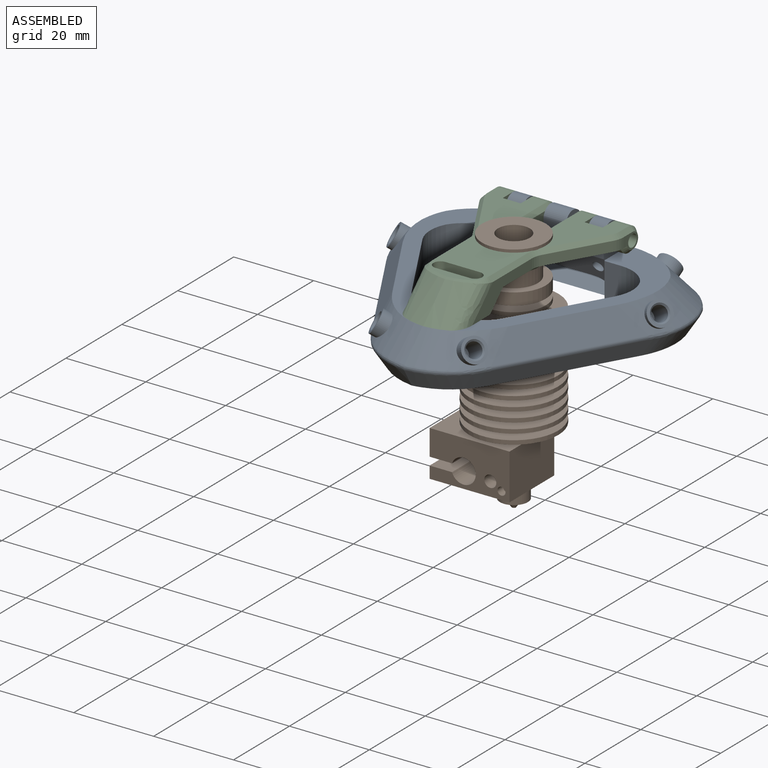
[diagram: assembled view]
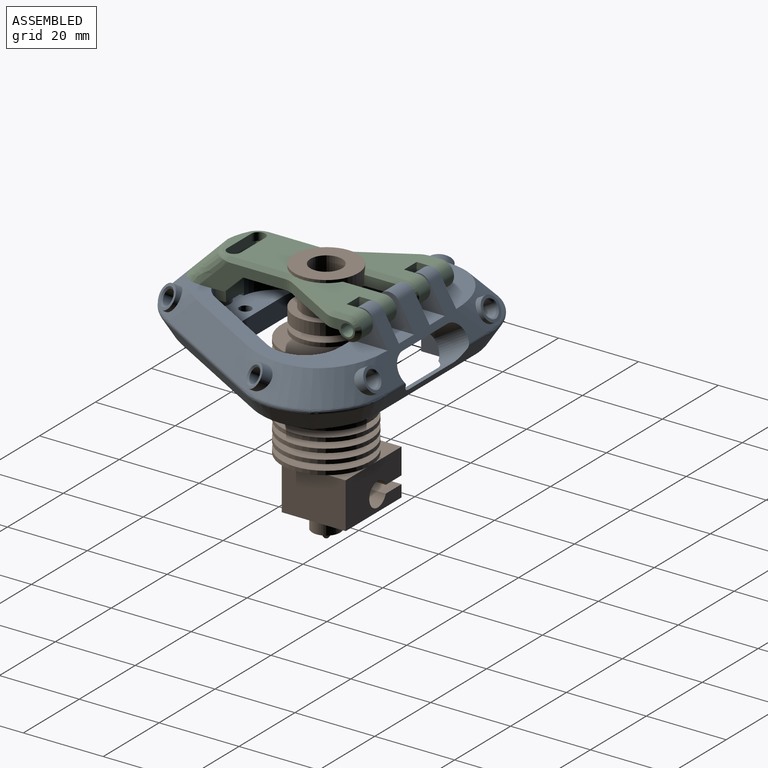
[diagram: assembled view, second angle]
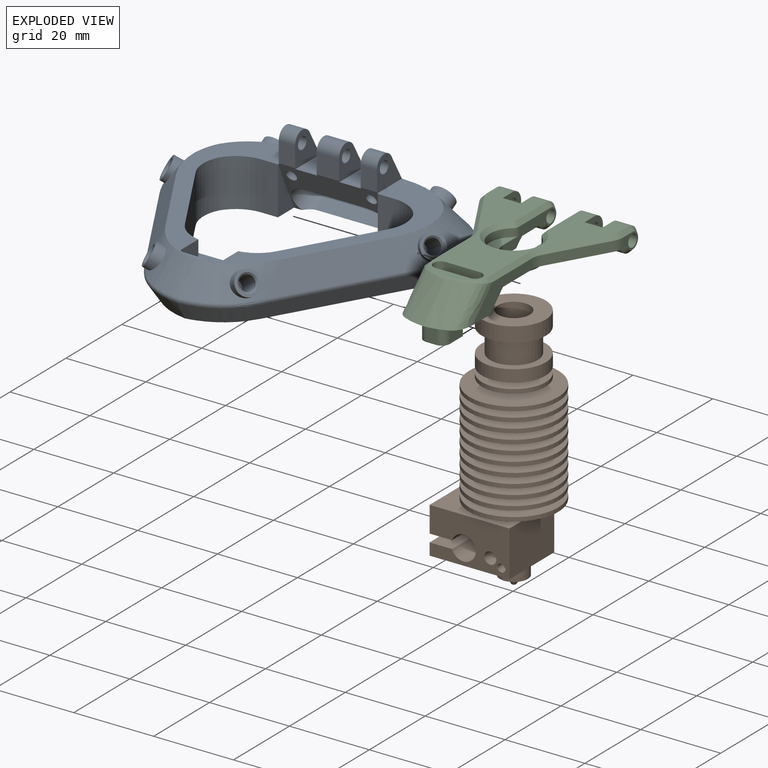
[diagram: exploded view]
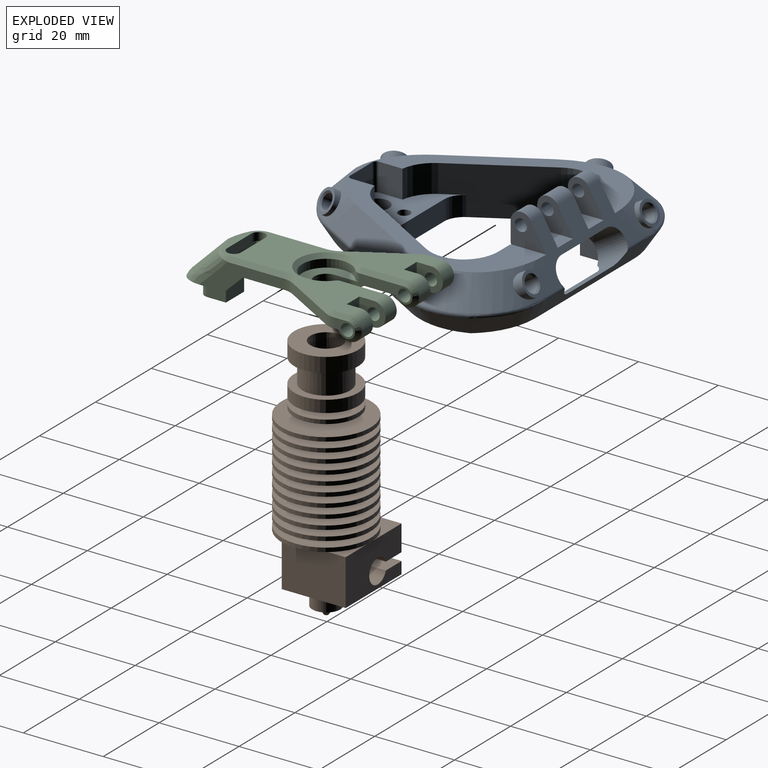
[diagram: exploded view, second angle]
ASSEMBLY  parts=3 mates=2
PART A: 127 faces, bbox 74.6x70.5x22.2 mm
  f0: plane 66.09x61.82mm, normal (0,0,-1), area 1262.6mm2, adj f1,f15,f16,f18,f20,f33,f34,f35
  f1: plane 12x4.22mm, normal (0,-1,0), area 50.7mm2, adj f0,f6,f68,f83
  f2: plane 5.08x4.1mm, normal (0,-1,0), area 20.8mm2, adj f10,f11,f79,f84
  f3: plane 5.6x5.08mm, normal (0,-1,0), area 28.5mm2, adj f8,f9,f80,f84
  f4: plane 5.08x4.1mm, normal (0,-1,0), area 20.8mm2, adj f12,f13,f78,f84
  f5: plane 8.78x5.4mm, normal (0,0,1), area 47.4mm2, adj f9,f13,f17,f84
  f6: plane 59.55x56.2mm, normal (0,0,1), area 677.8mm2, adj f1,f10,f12,f20,f21,f22,f23,f24
  f7: plane 8.78x5.4mm, normal (0,0,1), area 47.4mm2, adj f8,f11,f17,f84
  f8: plane 8.93x8mm, normal (1,0,0), area 43.6mm2, adj f3,f7,f17,f80,f84,f89,f124
  f9: plane 8.93x8mm, normal (-1,0,0), area 43.6mm2, adj f3,f5,f17,f80,f84,f89,f124
  f10: plane 8.93x8mm, normal (1,0,0), area 43.6mm2, adj f2,f6,f17,f79,f84,f88,f126
  f11: plane 8.93x8mm, normal (-1,0,0), area 43.6mm2, adj f2,f7,f17,f79,f84,f88,f126
  f12: plane 8.93x8mm, normal (-1,0,0), area 43.6mm2, adj f4,f6,f17,f78,f84,f87,f125
  f13: plane 8.93x8mm, normal (1,0,0), area 43.6mm2, adj f4,f5,f17,f78,f84,f87,f125
  f14: plane 16x7.04mm, normal (0,0.5,-0.87), area 130.1mm2, adj f15,f16,f17,f84
  f15: cylinder r=4mm len=11.58mm, axis (0,0.87,0.5), area 99mm2, adj f0,f14,f17,f18,f19,f81,f84
  f16: cylinder r=4mm len=11.58mm, axis (0,-0.87,-0.5), area 99mm2, adj f0,f14,f17,f18,f55,f81,f84
  f17: plane 35.16x12.93mm, normal (0,0.87,0.5), area 194.2mm2, adj f5,f7,f8,f9,f10,f11,f12,f13
  f18: plane 39.03x5.7mm, normal (0,0.87,-0.5), area 137.2mm2, adj f0,f15,f16,f19,f37,f40,f53,f55
  f19: cylinder r=1mm len=6.57mm, axis (1,0,0), area 6.6mm2, adj f15,f17,f18,f53
  f20: plane 12x4.22mm, normal (0,-1,0), area 50.7mm2, adj f0,f6,f65,f82
  f21: cylinder r=9mm len=7mm, axis (0,0,1), area 56.5mm2, adj f6,f63,f69,f76
  f22: plane 30.45x18.15mm, normal (0.75,-0.43,0.5), area 221.8mm2, adj f6,f25,f28,f41
  f23: plane 30.45x18.15mm, normal (-0.75,-0.43,0.5), area 221.8mm2, adj f6,f24,f27,f54
  f24: cylinder r=20.5mm len=16.32mm, axis (0.06,0.71,0.71), area 125.8mm2, adj f6,f23,f25,f30,f50,f52,f100
  f25: cylinder r=20.5mm len=16.32mm, axis (-0.06,0.71,0.71), area 125.8mm2, adj f6,f22,f24,f30,f42,f44,f94
  f26: cylinder r=20.5mm len=21.27mm, axis (-0.58,0.41,-0.71), area 125.8mm2, adj f6,f17,f27,f32,f57,f59,f104
  f27: cylinder r=20.5mm len=20.61mm, axis (0.64,-0.3,0.71), area 125.8mm2, adj f6,f23,f26,f32,f56,f58,f98
  f28: cylinder r=20.5mm len=20.61mm, axis (0.64,0.3,-0.71), area 125.8mm2, adj f6,f22,f29,f31,f43,f45,f96
  f29: cylinder r=20.5mm len=21.27mm, axis (0.58,0.41,-0.71), area 125.8mm2, adj f6,f17,f28,f31,f51,f53,f102
  f30: plane 0.34x0.34mm, normal (0,-0.71,0.71), area 0mm2, adj f24,f25,f46,f48
  f31: plane 0.34x0.31mm, normal (0.61,0.35,0.71), area 0mm2, adj f28,f29,f47,f49
  f32: plane 0.34x0.31mm, normal (-0.61,0.35,0.71), area 0mm2, adj f26,f27,f60,f61
  f33: plane 32.83x20.47mm, normal (-0.75,-0.43,-0.5), area 192.2mm2, adj f0,f35,f38,f52,f54,f56
  f34: plane 32.83x20.47mm, normal (0.75,-0.43,-0.5), area 192.2mm2, adj f0,f36,f39,f41,f42,f43
  f35: cylinder r=20.5mm len=16.22mm, axis (0.28,0.48,-0.83), area 88.6mm2, adj f0,f33,f36,f48,f50
  f36: cylinder r=20.5mm len=16.22mm, axis (-0.28,0.48,-0.83), area 88.6mm2, adj f0,f34,f35,f44,f46
  f37: cylinder r=20.5mm len=16.58mm, axis (-0.28,0.48,0.83), area 88.6mm2, adj f0,f18,f38,f59,f61
  f38: cylinder r=20.5mm len=16.8mm, axis (-0.55,0,0.83), area 88.6mm2, adj f0,f33,f37,f58,f60
  f39: cylinder r=20.5mm len=16.8mm, axis (-0.55,0,-0.83), area 88.6mm2, adj f0,f34,f40,f45,f47
  f40: cylinder r=20.5mm len=16.58mm, axis (0.28,0.48,0.83), area 88.6mm2, adj f0,f18,f39,f49,f51
  f41: cylinder r=1mm len=30.52mm, axis (-0.5,-0.87,0), area 36.8mm2, adj f22,f34,f42,f43
  f42: bspline ~1.27x1.04mm, area 1.5mm2, adj f25,f34,f41,f44
  f43: bspline ~1.31x1.04mm, area 1.5mm2, adj f28,f34,f41,f45
  f44: bspline ~16.17x11.19mm, area 22.4mm2, adj f25,f36,f42,f46
  f45: bspline ~20.89x3.98mm, area 22.4mm2, adj f28,f39,f43,f47
  f46: bspline ~1.22x0.3mm, area 0.1mm2, adj f30,f36,f44,f48
  f47: bspline ~1.22x0.31mm, area 0.1mm2, adj f31,f39,f45,f49
  f48: bspline ~1.22x0.3mm, area 0.1mm2, adj f30,f35,f46,f50
  f49: bspline ~1.22x0.28mm, area 0.1mm2, adj f31,f40,f47,f51
  f50: bspline ~16.17x11.19mm, area 22.4mm2, adj f24,f35,f48,f52
  f51: bspline ~18.41x10.26mm, area 22.4mm2, adj f29,f40,f49,f53
  f52: bspline ~1.27x1.04mm, area 1.5mm2, adj f24,f33,f50,f54
  f53: bspline ~5.49x1.29mm, area 1.5mm2, adj f18,f19,f29,f51
  f54: cylinder r=1mm len=30.52mm, axis (-0.5,0.87,0), area 36.8mm2, adj f23,f33,f52,f56
  f55: cylinder r=1mm len=6.57mm, axis (1,0,0), area 6.6mm2, adj f16,f17,f18,f57
  f56: bspline ~1.31x1.04mm, area 1.5mm2, adj f27,f33,f54,f58
  f57: bspline ~5.49x1.29mm, area 1.5mm2, adj f18,f26,f55,f59
  f58: bspline ~20.89x3.98mm, area 22.4mm2, adj f27,f38,f56,f60
  f59: bspline ~18.41x10.26mm, area 22.4mm2, adj f26,f37,f57,f61
  f60: bspline ~1.22x0.31mm, area 0.1mm2, adj f32,f38,f58,f61
  f61: bspline ~1.22x0.28mm, area 0.1mm2, adj f32,f37,f59,f60
  f62: plane 21.96x12.68mm, normal (-0.87,0.5,0), area 275.4mm2, adj f0,f6,f64,f66,f69,f71
  f63: plane 21.96x12.68mm, normal (0.87,0.5,0), area 275.4mm2, adj f0,f6,f21,f67,f69,f72
  f64: cylinder r=9mm len=7mm, axis (0,0,1), area 56.5mm2, adj f6,f62,f69,f75
  f65: cylinder r=9mm len=12mm, axis (0,0,1), area 108.4mm2, adj f0,f6,f20,f66
  f66: cylinder r=9mm len=12mm, axis (0,0,1), area 108.4mm2, adj f0,f6,f62,f65
  f67: cylinder r=9mm len=12mm, axis (0,0,1), area 108.4mm2, adj f0,f6,f63,f68
  f68: cylinder r=9mm len=12mm, axis (0,0,1), area 108.4mm2, adj f0,f1,f6,f67
  f69: plane 28.66x16.28mm, normal (0,0,1), area 178.2mm2, adj f21,f62,f63,f64,f70,f71,f72,f73
  f70: plane 20x5mm, normal (0,1,0), area 100mm2, adj f0,f69,f71,f72
  f71: cylinder r=5mm len=5mm, axis (0,0,-1), area 26.2mm2, adj f0,f62,f69,f70
  f72: cylinder r=5mm len=5mm, axis (0,0,-1), area 26.2mm2, adj f0,f63,f69,f70
  f73: cylinder r=3mm len=6mm, axis (0,0,-1), area 94.2mm2, adj f0,f69
  f74: cylinder r=1.5mm len=5mm, axis (0,0,-1), area 47.1mm2, adj f0,f69
  f75: plane 7x5.88mm, normal (-1,0,0), area 41.1mm2, adj f6,f64,f69,f86
  f76: plane 7x5.88mm, normal (1,0,0), area 41.1mm2, adj f6,f21,f69,f85
  f77: plane 8x7mm, normal (0,1,0), area 56mm2, adj f6,f69,f85,f86
  f78: cylinder r=2.6mm len=4.1mm, axis (1,0,0), area 16.7mm2, adj f4,f12,f13,f125
  f79: cylinder r=2.6mm len=4.1mm, axis (1,0,0), area 16.7mm2, adj f2,f10,f11,f126
  f80: cylinder r=2.6mm len=5.6mm, axis (1,0,0), area 22.9mm2, adj f3,f8,f9,f124
  f81: plane 16x3.83mm, normal (0,-0.5,0.87), area 70.8mm2, adj f0,f15,f16,f18
  f82: plane 12x5.74mm, normal (-1,0,0), area 35.3mm2, adj f0,f6,f20,f84
  f83: plane 12x5.74mm, normal (1,0,0), area 35.3mm2, adj f0,f1,f6,f84
  f84: plane 25.19x12.51mm, normal (0,-0.91,-0.42), area 162mm2, adj f0,f2,f3,f4,f5,f6,f7,f8
  f85: cylinder r=1mm len=7mm, axis (0,0,-1), area 11mm2, adj f6,f69,f76,f77
  f86: cylinder r=1mm len=7mm, axis (0,0,1), area 11mm2, adj f6,f69,f75,f77
  f87: cylinder r=1.53mm len=4.1mm, axis (1,0,0), area 39.4mm2, adj f12,f13
  f88: cylinder r=1.53mm len=4.1mm, axis (1,0,0), area 39.4mm2, adj f10,f11
  f89: cylinder r=1.53mm len=5.6mm, axis (1,0,0), area 53.8mm2, adj f8,f9
  f90: cylinder r=1.35mm len=5.67mm, axis (0,-0.91,-0.42), area 42.4mm2, adj f84,f91
  f91: cone r=0mm half-angle=59deg, axis (0,-0.91,-0.42), area 6.7mm2, adj f90
  f92: cylinder r=1.35mm len=5.67mm, axis (0,-0.91,-0.42), area 42.4mm2, adj f84,f93
  f93: cone r=0mm half-angle=59deg, axis (0,-0.91,-0.42), area 6.7mm2, adj f92
  f94: cylinder r=3mm len=6.56mm, axis (0.75,-0.43,0.5), area 33.1mm2, adj f25,f95
  f95: plane 5.41x5.2mm, normal (0.75,-0.43,0.5), area 12mm2, adj f94,f123
  f96: cylinder r=3mm len=6.56mm, axis (0.75,-0.43,0.5), area 33.1mm2, adj f28,f97
  f97: plane 5.41x5.2mm, normal (0.75,-0.43,0.5), area 12mm2, adj f96,f122
  f98: cylinder r=3mm len=6.24mm, axis (-0.75,-0.43,0.5), area 36.1mm2, adj f27,f99
  f99: plane 5.41x5.2mm, normal (-0.75,-0.43,0.5), area 12mm2, adj f98,f119
  f100: cylinder r=3mm len=6.56mm, axis (-0.75,-0.43,0.5), area 33.1mm2, adj f24,f101
  f101: plane 5.41x5.2mm, normal (-0.75,-0.43,0.5), area 12mm2, adj f100,f118
  f102: cylinder r=3mm len=6.28mm, axis (0,0.87,0.5), area 40.7mm2, adj f29,f103
  f103: plane 6x5.2mm, normal (0,0.87,0.5), area 12mm2, adj f102,f121
  f104: cylinder r=3mm len=6.28mm, axis (0,0.87,0.5), area 40.7mm2, adj f26,f105
  f105: plane 6x5.2mm, normal (0,0.87,0.5), area 12mm2, adj f104,f120
  f106: cylinder r=1.88mm len=8.18mm, axis (0.75,-0.43,0.5), area 89.5mm2, adj f107,f123
  f107: cone r=0mm half-angle=59deg, axis (0.75,-0.43,0.5), area 12.9mm2, adj f106
  f108: cylinder r=1.88mm len=8.18mm, axis (0.75,-0.43,0.5), area 89.5mm2, adj f109,f122
  f109: cone r=0mm half-angle=59deg, axis (0.75,-0.43,0.5), area 12.9mm2, adj f108
  f110: cylinder r=1.88mm len=8.18mm, axis (-0.75,-0.43,0.5), area 89.5mm2, adj f111,f119
  f111: cone r=0mm half-angle=59deg, axis (-0.75,-0.43,0.5), area 12.9mm2, adj f110
  f112: cylinder r=1.88mm len=8.18mm, axis (-0.75,-0.43,0.5), area 89.5mm2, adj f113,f118
  f113: cone r=0mm half-angle=59deg, axis (-0.75,-0.43,0.5), area 12.9mm2, adj f112
  f114: cylinder r=1.88mm len=8.46mm, axis (0,0.87,0.5), area 89.5mm2, adj f115,f121
  f115: cone r=0mm half-angle=59deg, axis (0,0.87,0.5), area 12.9mm2, adj f114
  f116: cylinder r=1.88mm len=8.46mm, axis (0,0.87,0.5), area 89.5mm2, adj f117,f120
  f117: cone r=0mm half-angle=59deg, axis (0,0.87,0.5), area 12.9mm2, adj f116
  f118: cone r=1.88mm half-angle=45deg, axis (-0.75,-0.43,0.5), area 7.4mm2, adj f101,f112
  f119: cone r=1.88mm half-angle=45deg, axis (-0.75,-0.43,0.5), area 7.4mm2, adj f99,f110
  f120: cone r=1.88mm half-angle=45deg, axis (0,0.87,0.5), area 7.4mm2, adj f105,f116
  f121: cone r=1.88mm half-angle=45deg, axis (0,0.87,0.5), area 7.4mm2, adj f103,f114
  f122: cone r=1.88mm half-angle=45deg, axis (0.75,-0.43,0.5), area 7.4mm2, adj f97,f108
  f123: cone r=1.88mm half-angle=45deg, axis (0.75,-0.43,0.5), area 7.4mm2, adj f95,f106
  f124: cylinder r=3mm len=5.6mm, axis (-1,0,0), area 17.5mm2, adj f8,f9,f17,f80
  f125: cylinder r=3mm len=4.1mm, axis (-1,0,0), area 12.8mm2, adj f12,f13,f17,f78
  f126: cylinder r=3mm len=4.1mm, axis (-1,0,0), area 12.8mm2, adj f10,f11,f17,f79
PART B: 92 faces, bbox 26.7x22.3x62 mm
  f0: cylinder r=2.1mm len=18.9mm, axis (0,0,1), area 249.4mm2, adj f57,f59
  f1: cylinder r=8mm len=16mm, axis (0,0,1), area 186mm2, adj f2,f3
  f2: plane 16x16mm, normal (0,0,-1), area 88mm2, adj f1,f4
  f3: plane 16x16mm, normal (0,0,1), area 150.8mm2, adj f1,f56
  f4: cylinder r=6mm len=12mm, axis (0,0,1), area 226.2mm2, adj f2,f7
  f5: cylinder r=8mm len=16mm, axis (0,0,1), area 150.8mm2, adj f6,f7
  f6: plane 16x16mm, normal (0,0,-1), area 150.8mm2, adj f5,f55
  f7: plane 16x16mm, normal (0,0,1), area 88mm2, adj f4,f5
  f8: plane 22.3x22.3mm, normal (0,0,-1), area 359.9mm2, adj f9,f60
  f9: cylinder r=11.15mm len=22.3mm, axis (0,0,1), area 70.1mm2, adj f8,f10
  f10: plane 22.3x22.3mm, normal (0,0,1), area 277.5mm2, adj f9,f11
  f11: cone r=5.89mm half-angle=4.2deg, axis (0,0,-1), area 56.2mm2, adj f10,f12
  f12: plane 22.3x22.3mm, normal (0,0,-1), area 281.5mm2, adj f11,f13
  f13: cylinder r=11.15mm len=22.3mm, axis (0,0,1), area 70.1mm2, adj f12,f14
  f14: plane 22.3x22.3mm, normal (0,0,1), area 284.2mm2, adj f13,f15
  f15: cone r=5.71mm half-angle=4.2deg, axis (0,0,-1), area 54.5mm2, adj f14,f16
  f16: plane 22.3x22.3mm, normal (0,0,-1), area 288.2mm2, adj f15,f17
  f17: cylinder r=11.15mm len=22.3mm, axis (0,0,1), area 70.1mm2, adj f16,f18
  f18: plane 22.3x22.3mm, normal (0,0,1), area 290.8mm2, adj f17,f19
  f19: cone r=5.53mm half-angle=4.2deg, axis (0,0,-1), area 52.7mm2, adj f18,f20
  f20: plane 22.3x22.3mm, normal (0,0,-1), area 294.6mm2, adj f19,f21
  f21: cylinder r=11.15mm len=22.3mm, axis (0,0,1), area 70.1mm2, adj f20,f22
  f22: plane 22.3x22.3mm, normal (0,0,1), area 297.1mm2, adj f21,f23
  f23: cone r=5.35mm half-angle=4.2deg, axis (0,0,-1), area 51mm2, adj f22,f24
  f24: plane 22.3x22.3mm, normal (0,0,-1), area 300.8mm2, adj f23,f25
  f25: cylinder r=11.15mm len=22.3mm, axis (0,0,1), area 70.1mm2, adj f24,f26
  f26: plane 22.3x22.3mm, normal (0,0,1), area 303.2mm2, adj f25,f27
  f27: cone r=5.16mm half-angle=4.2deg, axis (0,0,-1), area 49.3mm2, adj f26,f28
  f28: plane 22.3x22.3mm, normal (0,0,-1), area 306.8mm2, adj f27,f29
  f29: cylinder r=11.15mm len=22.3mm, axis (0,0,1), area 70.1mm2, adj f28,f30
  f30: plane 22.3x22.3mm, normal (0,0,1), area 309.1mm2, adj f29,f31
  f31: cone r=4.98mm half-angle=4.2deg, axis (0,0,-1), area 47.6mm2, adj f30,f32
  f32: plane 22.3x22.3mm, normal (0,0,-1), area 312.6mm2, adj f31,f33
  f33: cylinder r=11.15mm len=22.3mm, axis (0,0,1), area 70.1mm2, adj f32,f34
  f34: plane 22.3x22.3mm, normal (0,0,1), area 314.9mm2, adj f33,f35
  f35: cone r=4.8mm half-angle=4.2deg, axis (0,0,-1), area 45.9mm2, adj f34,f36
  f36: plane 22.3x22.3mm, normal (0,0,-1), area 318.2mm2, adj f35,f37
  f37: cylinder r=11.15mm len=22.3mm, axis (0,0,1), area 70.1mm2, adj f36,f38
  f38: plane 22.3x22.3mm, normal (0,0,1), area 320.4mm2, adj f37,f39
  f39: cone r=4.62mm half-angle=4.2deg, axis (0,0,-1), area 44.2mm2, adj f38,f40
  f40: plane 22.3x22.3mm, normal (0,0,-1), area 323.6mm2, adj f39,f41
  f41: cylinder r=11.15mm len=22.3mm, axis (0,0,1), area 70.1mm2, adj f40,f42
  f42: plane 22.3x22.3mm, normal (0,0,1), area 325.7mm2, adj f41,f43
  f43: cone r=4.44mm half-angle=4.2deg, axis (0,0,-1), area 42.4mm2, adj f42,f44
  f44: plane 22.3x22.3mm, normal (0,0,-1), area 328.7mm2, adj f43,f45
  f45: cylinder r=11.15mm len=22.3mm, axis (0,0,1), area 70.1mm2, adj f44,f46
  f46: plane 22.3x22.3mm, normal (0,0,1), area 330.8mm2, adj f45,f47
  f47: cone r=4.25mm half-angle=4.2deg, axis (0,0,-1), area 40.7mm2, adj f46,f48
  f48: plane 22.3x22.3mm, normal (0,0,-1), area 333.7mm2, adj f47,f49
  f49: cylinder r=11.15mm len=22.3mm, axis (0,0,1), area 70.1mm2, adj f48,f50
  f50: plane 22.3x22.3mm, normal (0,0,1), area 335.6mm2, adj f49,f51
  f51: cone r=4.07mm half-angle=4.2deg, axis (0,0,-1), area 39mm2, adj f50,f52
  f52: plane 16x16mm, normal (0,0,-1), area 149mm2, adj f51,f53
  f53: cylinder r=8mm len=16mm, axis (0,0,1), area 50.3mm2, adj f52,f54
  f54: plane 16x16mm, normal (0,0,1), area 150.8mm2, adj f53,f55
  f55: cylinder r=4mm len=8mm, axis (0,0,1), area 37.7mm2, adj f6,f54
  f56: cylinder r=4mm len=8mm, axis (0,0,1), area 153.3mm2, adj f3,f57
  f57: cone r=4.1mm half-angle=45deg, axis (0,0,1), area 51.5mm2, adj f0,f56
  f58: cylinder r=3mm len=14.9mm, axis (0,0,-1), area 280.9mm2, adj f59,f85
  f59: cone r=3.1mm half-angle=45deg, axis (0,0,-1), area 20.4mm2, adj f0,f58
  f60: cylinder r=3.12mm len=6.25mm, axis (0,0,1), area 49.1mm2, adj f8,f80
  f61: cylinder r=2.75mm len=5.5mm, axis (0,0,-1), area 25.9mm2, adj f62,f67
  f62: plane 7x7mm, normal (0,0,1), area 14.7mm2, adj f61,f63
  f63: cylinder r=3.5mm len=7mm, axis (0,0,-1), area 66mm2, adj f62,f64
  f64: plane 7x7mm, normal (0,0,-1), area 27.1mm2, adj f63,f65
  f65: cone r=0.5mm half-angle=35deg, axis (0,0,1), area 18.4mm2, adj f64,f66
  f66: plane 1x1mm, normal (0,0,-1), area 0.8mm2, adj f65
  f67: plane 6x6mm, normal (0,0,-1), area 4.5mm2, adj f61,f74
  f68: plane 1.6x1.6mm, normal (0,-1,0), area 2mm2, adj f69
  f69: cylinder r=0.8mm len=2.5mm, axis (0,-1,0), area 12.6mm2, adj f68,f70
  f70: plane 2x2mm, normal (0,-1,0), area 1.1mm2, adj f69,f71
  f71: cylinder r=1mm len=2mm, axis (0,-1,0), area 12.6mm2, adj f70,f76
  f72: plane 3x3mm, normal (0,-1,0), area 7.1mm2, adj f73
  f73: cylinder r=1.5mm len=3.5mm, axis (0,-1,0), area 33mm2, adj f72,f76
  f74: cylinder r=3mm len=6mm, axis (0,0,-1), area 23.6mm2, adj f67,f82
  f75: plane 20x11.5mm, normal (0,1,0), area 189.8mm2, adj f77,f78,f79,f80,f81,f82,f83,f84
  f76: plane 20x11.5mm, normal (0,-1,0), area 179.6mm2, adj f71,f73,f77,f78,f79,f80,f81,f82
  f77: cylinder r=3.05mm len=16mm, axis (0,1,0), area 274mm2, adj f75,f76,f78,f84
  f78: plane 16x5.62mm, normal (0,0,-1), area 89.9mm2, adj f75,f76,f77,f79
  f79: plane 16x6.5mm, normal (-1,0,0), area 104mm2, adj f75,f76,f78,f80
  f80: plane 20x16mm, normal (0,0,1), area 289.3mm2, adj f60,f75,f76,f79,f81
  f81: plane 16x11.5mm, normal (1,0,0), area 184mm2, adj f75,f76,f80,f82
  f82: plane 20x16mm, normal (0,0,-1), area 291.7mm2, adj f74,f75,f76,f81,f83
  f83: plane 16x3mm, normal (-1,0,0), area 48mm2, adj f75,f76,f82,f84
  f84: plane 16x5.62mm, normal (0,0,1), area 89.9mm2, adj f75,f76,f77,f83
  f85: plane 6x6mm, normal (0,0,1), area 15.7mm2, adj f58,f86
  f86: cylinder r=2mm len=4.61mm, axis (0,0,1), area 57.9mm2, adj f85,f87
  f87: plane 6x6mm, normal (0,0,-1), area 15.7mm2, adj f86,f88
  f88: cylinder r=3mm len=7.89mm, axis (0,0,-1), area 148.8mm2, adj f87,f91
  f89: plane 5x5mm, normal (0,0,1), area 19.6mm2, adj f90
  f90: cylinder r=2.5mm len=5mm, axis (0,0,-1), area 27.5mm2, adj f89,f91
  f91: plane 6x6mm, normal (0,0,1), area 8.6mm2, adj f88,f90
PART C: 91 faces, bbox 35.8x73x55.7 mm
  f0: plane 5.23x4mm, normal (1,0,0), area 9.2mm2, adj f8,f44,f67,f68,f69
  f1: plane 5.23x4mm, normal (-1,0,0), area 9.2mm2, adj f8,f43,f66,f82,f83
  f2: plane 6.57x6mm, normal (-1,0,0), area 24.9mm2, adj f6,f8,f15,f23,f44
  f3: plane 6.57x6mm, normal (1,0,0), area 24.9mm2, adj f6,f8,f14,f22,f43
  f4: plane 4.61x4.5mm, normal (0,0.7,-0.72), area 9.7mm2, adj f5,f8,f16,f45
  f5: plane 16.77x13.24mm, normal (0,0,-1), area 111.7mm2, adj f4,f16,f19,f20,f21,f25,f26,f27
  f6: plane 41.5x33.11mm, normal (0,0,1), area 490mm2, adj f2,f3,f7,f12,f13,f14,f15,f22
  f7: cylinder r=3mm len=6mm, axis (1,0,0), area 54.2mm2, adj f6,f8,f13,f17,f90
  f8: plane 35.04x30.88mm, normal (0,0,-1), area 369.2mm2, adj f0,f1,f2,f3,f4,f7,f12,f13
  f9: cylinder r=3mm len=6mm, axis (0,0,1), area 23mm2, adj f10,f28,f30,f32
  f10: plane 12.25x12mm, normal (0,0,1), area 64.8mm2, adj f9,f11,f28,f29,f30,f31,f62,f63
  f11: cylinder r=6mm len=12mm, axis (0,0,1), area 59.2mm2, adj f10,f62,f63,f87
  f12: plane 6.57x6mm, normal (-1,0,0), area 24.9mm2, adj f6,f8,f14,f18,f24,f42
  f13: plane 6.57x6mm, normal (1,0,0), area 24.9mm2, adj f6,f7,f8,f15,f17,f41
  f14: plane 4.5x3.5mm, normal (0,1,0), area 15.7mm2, adj f3,f6,f8,f12
  f15: plane 4.5x3.5mm, normal (0,1,0), area 15.7mm2, adj f2,f6,f8,f13
  f16: plane 21.36x7.02mm, normal (1,0,0), area 66.6mm2, adj f4,f5,f8,f25,f65,f73
  f17: cylinder r=20.5mm len=1.36mm, axis (0.58,0.41,-0.71), area 0.4mm2, adj f7,f13
  f18: cylinder r=20.5mm len=1.36mm, axis (-0.58,0.41,-0.71), area 0.4mm2, adj f12,f24
  f19: plane 21.36x7.02mm, normal (-1,0,0), area 66.6mm2, adj f5,f8,f26,f27,f64,f78
  f20: cylinder r=20.5mm len=9.4mm, axis (-0.06,0.71,0.71), area 63.2mm2, adj f5,f21,f25,f75
  f21: cylinder r=20.5mm len=9.4mm, axis (0.06,0.71,0.71), area 63.2mm2, adj f5,f20,f26,f76
  f22: cylinder r=3mm len=6mm, axis (1,0,0), area 54.5mm2, adj f3,f6,f8,f83
  f23: cylinder r=3mm len=6mm, axis (1,0,0), area 54.5mm2, adj f2,f6,f8,f68
  f24: cylinder r=3mm len=6mm, axis (1,0,0), area 54.2mm2, adj f6,f8,f12,f18,f84
  f25: bspline ~57.54x54.95mm, area 46mm2, adj f5,f16,f20,f74
  f26: bspline ~57.54x54.95mm, area 46mm2, adj f5,f19,f21,f77
  f27: plane 4.61x4.5mm, normal (0,0.7,-0.72), area 9.7mm2, adj f5,f8,f19,f47
  f28: plane 2.5x0mm, normal (0,1,0), area 0mm2, adj f9,f10,f29,f32
  f29: plane 20.24x5.19mm, normal (1,0,0), area 44.8mm2, adj f8,f10,f28,f32,f33,f42,f63,f84
  f30: plane 2.5x0mm, normal (0,1,0), area 0mm2, adj f9,f10,f31,f32
  f31: plane 20.24x5.19mm, normal (-1,0,0), area 44.8mm2, adj f8,f10,f30,f32,f33,f41,f62,f89
  f32: plane 12.07x11.21mm, normal (0,0,-1), area 64.5mm2, adj f9,f28,f29,f30,f31,f33
  f33: bspline ~16.2x15.95mm, area 106.5mm2, adj f8,f29,f31,f32
  f34: plane 5x4.67mm, normal (1,0,0), area 23.4mm2, adj f5,f37,f38,f55
  f35: plane 5x2.5mm, normal (0,-1,0), area 12.5mm2, adj f5,f38,f55,f56
  f36: plane 5x4.67mm, normal (-1,0,0), area 23.4mm2, adj f5,f37,f38,f56
  f37: plane 6.5x5mm, normal (0,1,0), area 32.5mm2, adj f5,f34,f36,f38
  f38: plane 6.67x6.5mm, normal (0,0,-1), area 34.6mm2, adj f34,f35,f36,f37,f40,f55,f56
  f39: cone r=0mm half-angle=59deg, axis (0,0,-1), area 8.2mm2, adj f40
  f40: cylinder r=1.5mm len=8mm, axis (0,0,-1), area 75.4mm2, adj f38,f39
  f41: cylinder r=1.53mm len=5mm, axis (1,0,0), area 48mm2, adj f13,f31
  f42: cylinder r=1.53mm len=5mm, axis (1,0,0), area 48mm2, adj f12,f29
  f43: cylinder r=1.53mm len=5mm, axis (1,0,0), area 48mm2, adj f1,f3
  f44: cylinder r=1.53mm len=5mm, axis (1,0,0), area 48mm2, adj f0,f2
  f45: plane 10.65x6mm, normal (-1,0,0), area 35mm2, adj f4,f5,f8,f46,f48,f57
  f46: plane 13x6mm, normal (0,1,0), area 73.2mm2, adj f5,f45,f47,f48,f49,f51
  f47: plane 10.65x6mm, normal (1,0,0), area 35mm2, adj f5,f8,f27,f46,f48,f57
  f48: plane 13x9.15mm, normal (0,0,-1), area 78.9mm2, adj f45,f46,f47,f53,f54,f57,f58,f59
  f49: cylinder r=0.88mm len=4mm, axis (0,1,0), area 22mm2, adj f46,f50
  f50: cone r=0mm half-angle=59deg, axis (0,1,0), area 2.8mm2, adj f49
  f51: cylinder r=0.88mm len=4mm, axis (0,1,0), area 22mm2, adj f46,f52
  f52: cone r=0mm half-angle=59deg, axis (0,1,0), area 2.8mm2, adj f51
  f53: plane 8.7x2mm, normal (0,1,0), area 17.4mm2, adj f6,f48,f58,f59
  f54: plane 8.7x2mm, normal (0,-1,0), area 17.4mm2, adj f6,f48,f58,f59
  f55: cylinder r=2mm len=5mm, axis (0,0,1), area 15.7mm2, adj f5,f34,f35,f38
  f56: cylinder r=2mm len=5mm, axis (0,0,-1), area 15.7mm2, adj f5,f35,f36,f38
  f57: plane 13x1.5mm, normal (0,-0.71,-0.71), area 27.6mm2, adj f8,f45,f47,f48
  f58: cylinder r=1.75mm len=3.5mm, axis (0,0,1), area 11mm2, adj f6,f48,f53,f54
  f59: cylinder r=1.75mm len=3.5mm, axis (0,0,-1), area 11mm2, adj f6,f48,f53,f54
  f60: plane 14.13x8.16mm, normal (0.87,-0.5,0), area 40.8mm2, adj f8,f65,f67,f71
  f61: plane 14.13x8.16mm, normal (-0.87,-0.5,0), area 40.8mm2, adj f8,f64,f66,f80
  f62: cylinder r=2mm len=2mm, axis (0,0,1), area 3.6mm2, adj f10,f11,f31,f88
  f63: cylinder r=2mm len=2mm, axis (0,0,1), area 3.6mm2, adj f10,f11,f29,f86
  f64: cylinder r=5mm len=2.5mm, axis (0,0,-1), area 6.5mm2, adj f8,f19,f61,f79
  f65: cylinder r=5mm len=2.5mm, axis (0,0,-1), area 6.5mm2, adj f8,f16,f60,f72
  f66: cylinder r=5mm len=2.5mm, axis (0,0,-1), area 6.5mm2, adj f1,f8,f61,f81
  f67: cylinder r=5mm len=2.5mm, axis (0,0,1), area 6.5mm2, adj f0,f8,f60,f70
  f68: cone r=2mm half-angle=45deg, axis (-1,0,0), area 15.9mm2, adj f0,f8,f23,f69
  f69: plane 3.23x1mm, normal (0.71,0,0.71), area 4.6mm2, adj f0,f6,f68,f70
  f70: cone r=4mm half-angle=45deg, axis (0,0,-1), area 3.3mm2, adj f6,f67,f69,f71
  f71: plane 14.63x9.03mm, normal (0.61,-0.35,0.71), area 23.1mm2, adj f6,f60,f70,f72
  f72: cone r=6mm half-angle=45deg, axis (0,0,1), area 4.1mm2, adj f6,f65,f71,f73
  f73: plane 14.03x1mm, normal (0.71,0,0.71), area 19.8mm2, adj f6,f16,f72,f74
  f74: bspline ~4.06x2.65mm, area 4.9mm2, adj f6,f25,f73,f75
  f75: bspline ~6.03x2.32mm, area 4.5mm2, adj f6,f20,f74,f76
  f76: bspline ~6.03x2.32mm, area 4.5mm2, adj f6,f21,f75,f77
  f77: bspline ~4.06x2.65mm, area 4.9mm2, adj f6,f26,f76,f78
  f78: plane 14.03x1mm, normal (-0.71,0,0.71), area 19.8mm2, adj f6,f19,f77,f79
  f79: cone r=6mm half-angle=45deg, axis (0,0,1), area 4.1mm2, adj f6,f64,f78,f80
  f80: plane 14.63x9.03mm, normal (-0.61,-0.35,0.71), area 23.1mm2, adj f6,f61,f79,f81
  f81: cone r=4mm half-angle=45deg, axis (0,0,-1), area 3.3mm2, adj f6,f66,f80,f82
  f82: plane 3.23x1mm, normal (-0.71,0,0.71), area 4.6mm2, adj f1,f6,f81,f83
  f83: cone r=2mm half-angle=45deg, axis (1,0,0), area 15.9mm2, adj f1,f8,f22,f82
  f84: cone r=2mm half-angle=45deg, axis (-1,0,0), area 15.9mm2, adj f8,f24,f29,f85
  f85: plane 11.2x1mm, normal (0.71,0,0.71), area 15.8mm2, adj f6,f29,f84,f86
  f86: cone r=1mm half-angle=45deg, axis (0,0,-1), area 1.9mm2, adj f6,f63,f85,f87
  f87: cone r=6mm half-angle=45deg, axis (0,0,1), area 45.3mm2, adj f6,f11,f86,f88
  f88: cone r=1mm half-angle=45deg, axis (0,0,-1), area 1.9mm2, adj f6,f62,f87,f89
  f89: plane 11.2x1mm, normal (-0.71,0,0.71), area 15.8mm2, adj f6,f31,f88,f90
  f90: cone r=3mm half-angle=45deg, axis (1,0,0), area 15.9mm2, adj f7,f8,f31,f89
PLACE A at identity fixed
PLACE B t=(0.2,0,16.7)mm
PLACE C rot(axis=(-1,0,0),0deg) t=(0.2,0,0)mm
MATE revolute C.f7 <-> A.f124  axis (1,0,0) through (-2.8,17.44,13)mm
MATE fastened B.f0 <-> C.f9  axis (0,0,1) through (0.2,0,13)mm
